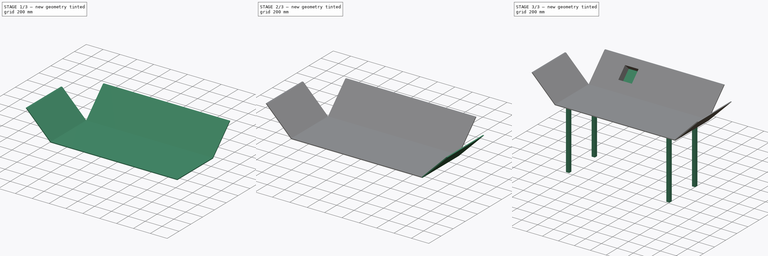
[diagram: build sequence overview — one tinted view per stage of 3, left to right]
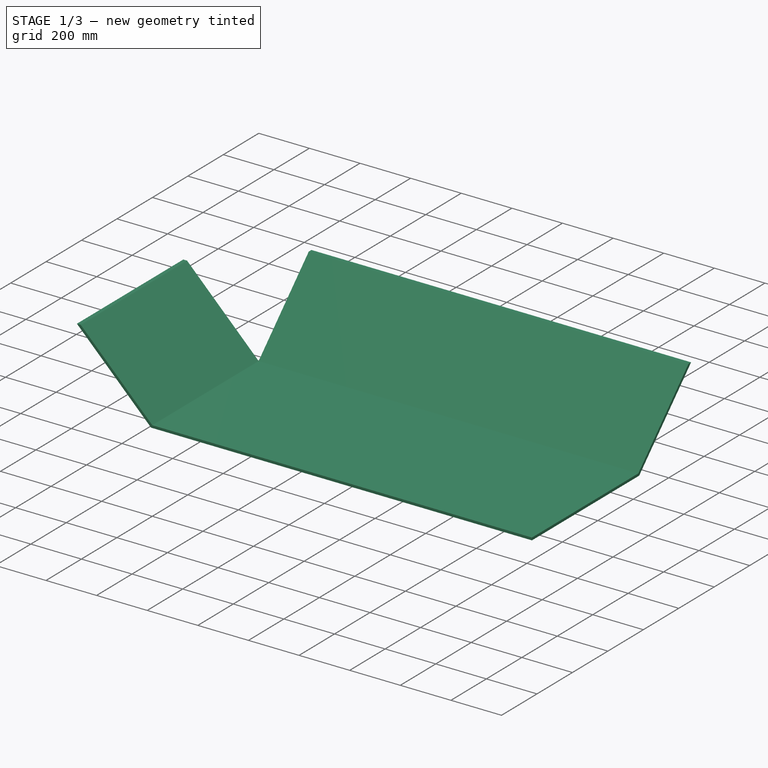
[diagram: stage 1 of 3 — iso view after this stage's code; geometry added in this stage tinted green]
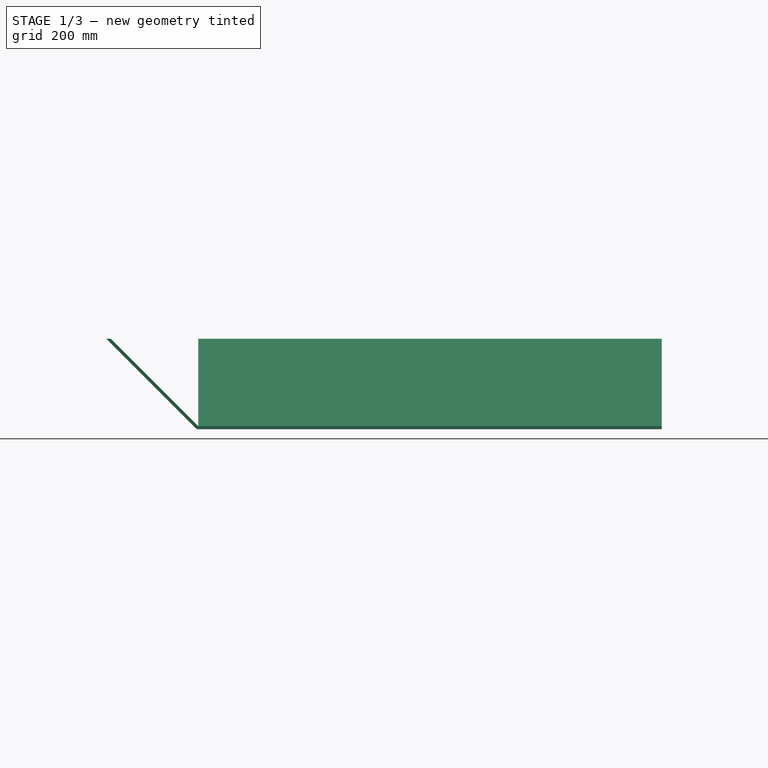
[diagram: stage 1 of 3 — front view after this stage's code; geometry added in this stage tinted green]
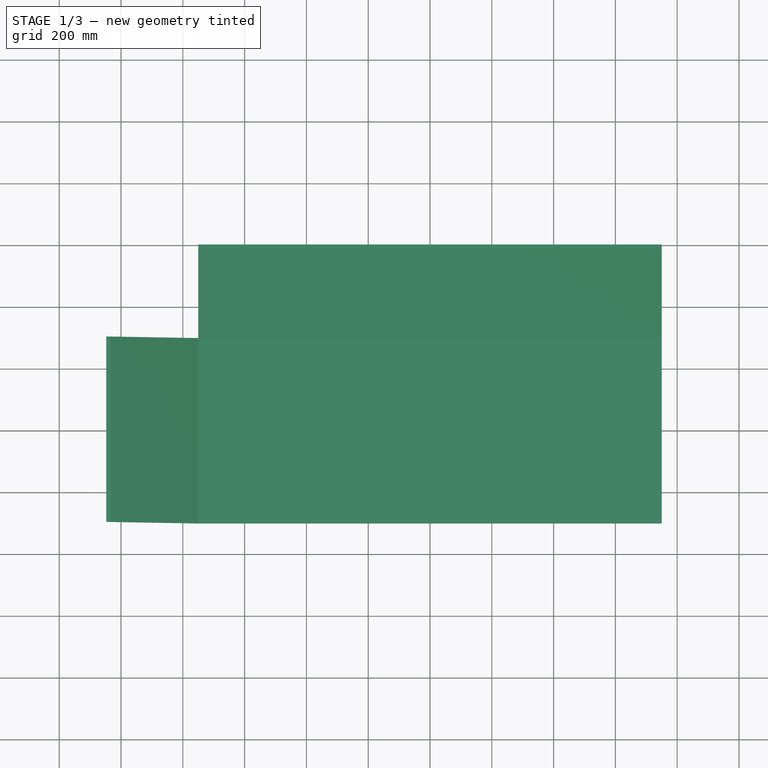
[diagram: stage 1 of 3 — top view after this stage's code; geometry added in this stage tinted green]
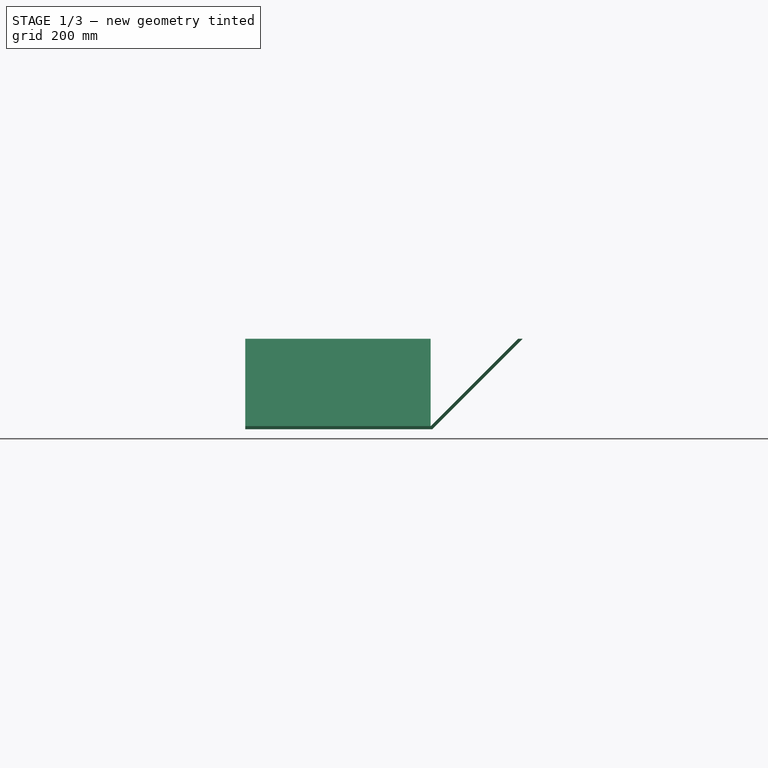
[diagram: stage 1 of 3 — right view after this stage's code; geometry added in this stage tinted green]
FCSTD DOCUMENT  (FreeCAD 0.16R6703 (Git))
Label: setup2
License: All rights reserved
LicenseURL: http://en.wikipedia.org/wiki/All_rights_reserved
objects: Sketcher::SketchObject×9, PartDesign::Pad×5, PartDesign::Mirrored×2, Part::Loft×2, PartDesign::Pocket×1, PartDesign::PolarPattern×1, PartDesign::MultiTransform×1
note: 27 computed .brp shape members not serialized (recipe doc carries the construction recipe); baked Part::Feature solids carry a one-line shape summary decoded from their .brp

FEATURE [Sketcher::SketchObject] Sketch  label="table_top"
  sketch-geometry (4):
    g0: LineSegment StartX=-750 StartY=300 StartZ=0 EndX=750 EndY=300 EndZ=0
    g1: LineSegment StartX=750 StartY=300 StartZ=0 EndX=750 EndY=-300 EndZ=0
    g2: LineSegment StartX=750 StartY=-300 StartZ=0 EndX=-750 EndY=-300 EndZ=0
    g3: LineSegment StartX=-750 StartY=-300 StartZ=0 EndX=-750 EndY=300 EndZ=0
  constraints (11):
    c: Coincident(g0,g1)
    c: Coincident(g1,g2)
    c: Coincident(g2,g3)
    c: Coincident(g3,g0)
    c: Horizontal(g0)
    c: Horizontal(g2)
    c: Vertical(g1)
    c: Vertical(g3)
    c: Symmetric(g0,g2,g-1)
    c: Distance(g0) = 1500
    c: Distance(g1) = 600
FEATURE [PartDesign::Pad] Pad
  Length = 10
  Length2 = 100
  Sketch = -> Sketch
  Type = 0
FEATURE [Sketcher::SketchObject] Sketch001  label="border_back"
  ExternalGeometry = -> [Pad]
  Placement = pos=(-750,0,0) rot=(0.57735,-0.57735,-0.57735;2.0944rad)
  Support = -> Pad [Face4]
  sketch-geometry (5):
    g0: LineSegment StartX=-300 StartY=0 StartZ=0 EndX=-300 EndY=10 EndZ=0
    g1: LineSegment StartX=-300 StartY=10 StartZ=0 EndX=-582.843 EndY=292.843 EndZ=0
    g2: LineSegment StartX=-582.843 StartY=292.843 StartZ=0 EndX=-597.843 EndY=292.843 EndZ=0
    g3: LineSegment StartX=-597.843 StartY=292.843 StartZ=0 EndX=-305 EndY=0 EndZ=0
    g4: LineSegment StartX=-305 StartY=0 StartZ=0 EndX=-300 EndY=0 EndZ=0
  constraints (14):
    c: Coincident(g0,g1)
    c: Coincident(g1,g2)
    c: Horizontal(g2)
    c: Coincident(g2,g3)
    c: Coincident(g0,g4)
    c: Angle(g1,g0) = 2.35619
    c: Parallel(g1,g3)
    c: Vertical(g0)
    c: Horizontal(g4)
    c: Distance(g2) = 15
    c: Distance(g0) = 10
    c: Distance(g1) = 400
    c: Coincident(g3,g4)
    c: Coincident(g0,g-3)
FEATURE [PartDesign::Pad] Pad001  label="back"
  Length = 1500
  Length2 = 100
  Reversed = true
  Sketch = -> Sketch001
  Type = 0
FEATURE [Sketcher::SketchObject] Sketch002  label="border_side"
  ExternalGeometry = -> [Pad001]
  Placement = pos=(0,-300,0) rot=(1,0,0;1.5708rad)
  Support = -> Pad001 [Face1]
  sketch-geometry (5):
    g0: LineSegment StartX=-750 StartY=10 StartZ=0 EndX=-1032.84 EndY=292.843 EndZ=0
    g1: LineSegment StartX=-1032.84 StartY=292.843 StartZ=0 EndX=-1047.84 EndY=292.843 EndZ=0
    g2: LineSegment StartX=-1047.84 StartY=292.843 StartZ=0 EndX=-755 EndY=0 EndZ=0
    g3: LineSegment StartX=-755 StartY=0 StartZ=0 EndX=-750 EndY=0 EndZ=0
    g4: LineSegment StartX=-750 StartY=0 StartZ=0 EndX=-750 EndY=10 EndZ=0
  constraints (14):
    c: Coincident(g0,g1)
    c: Horizontal(g1)
    c: Coincident(g1,g2)
    c: Coincident(g2,g3)
    c: Coincident(g3,g4)
    c: Coincident(g4,g0)
    c: Vertical(g4)
    c: Parallel(g0,g2)
    c: Angle(g0,g4) = 2.35619
    c: Horizontal(g3)
    c: Distance(g0) = 400
    c: Distance(g4) = 10
    c: Distance(g1) = 15
    c: Coincident(g3,g-3)
FEATURE [PartDesign::Pad] Pad002  label="side"
  Length = 600
  Length2 = 100
  Reversed = true
  Sketch = -> Sketch002
  Type = 0
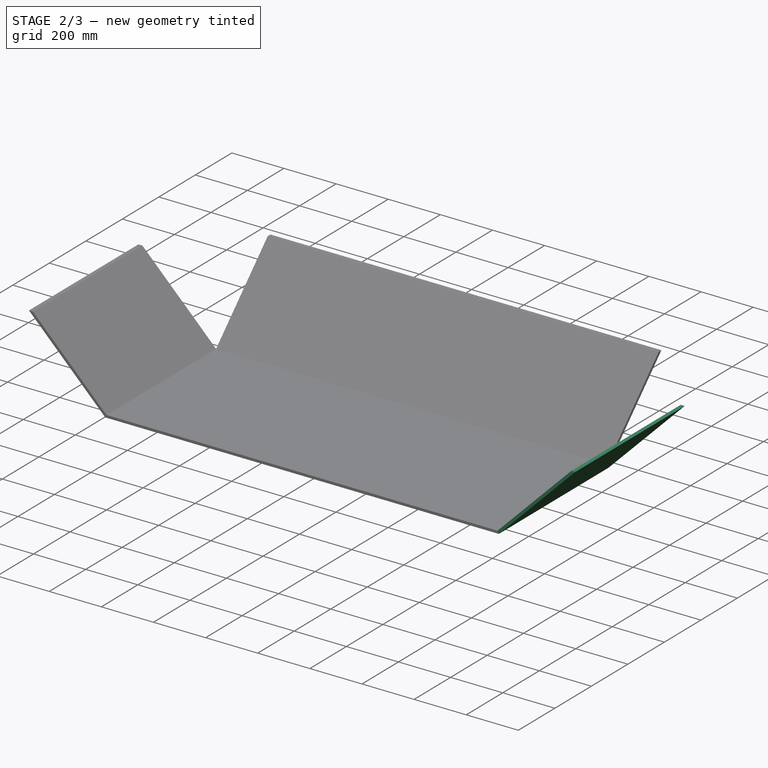
[diagram: stage 2 of 3 — iso view after this stage's code; geometry added in this stage tinted green]
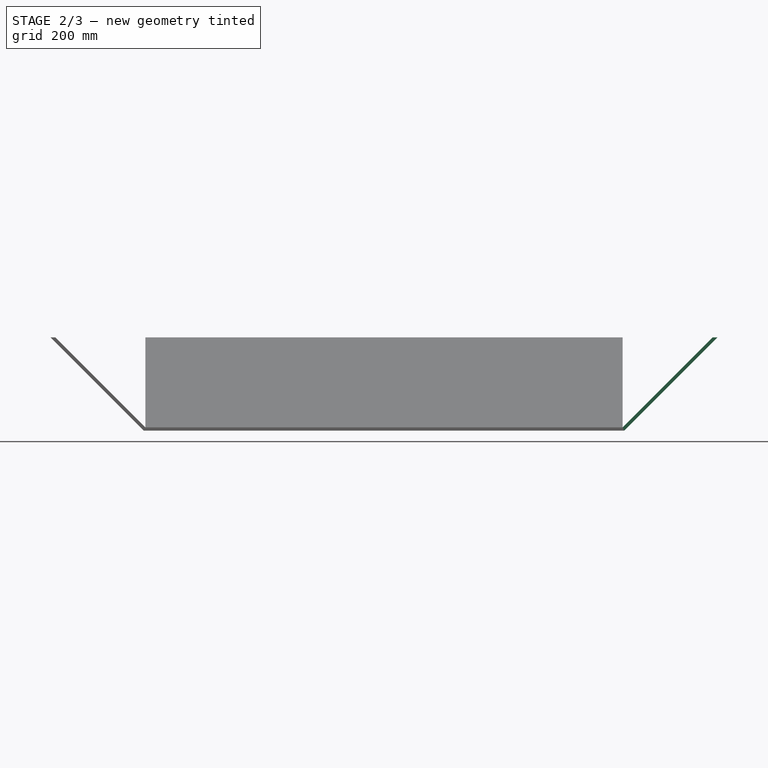
[diagram: stage 2 of 3 — front view after this stage's code; geometry added in this stage tinted green]
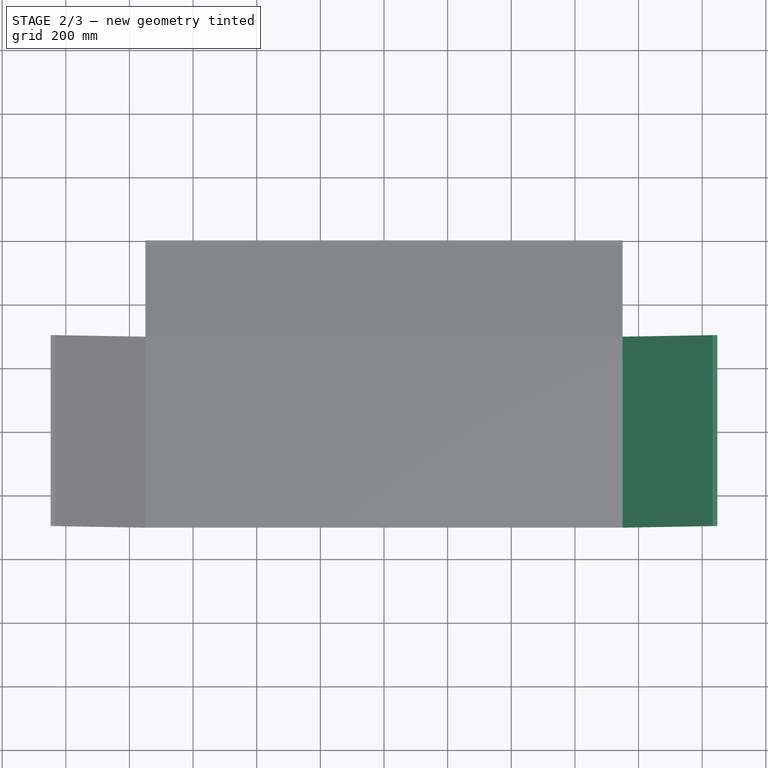
[diagram: stage 2 of 3 — top view after this stage's code; geometry added in this stage tinted green]
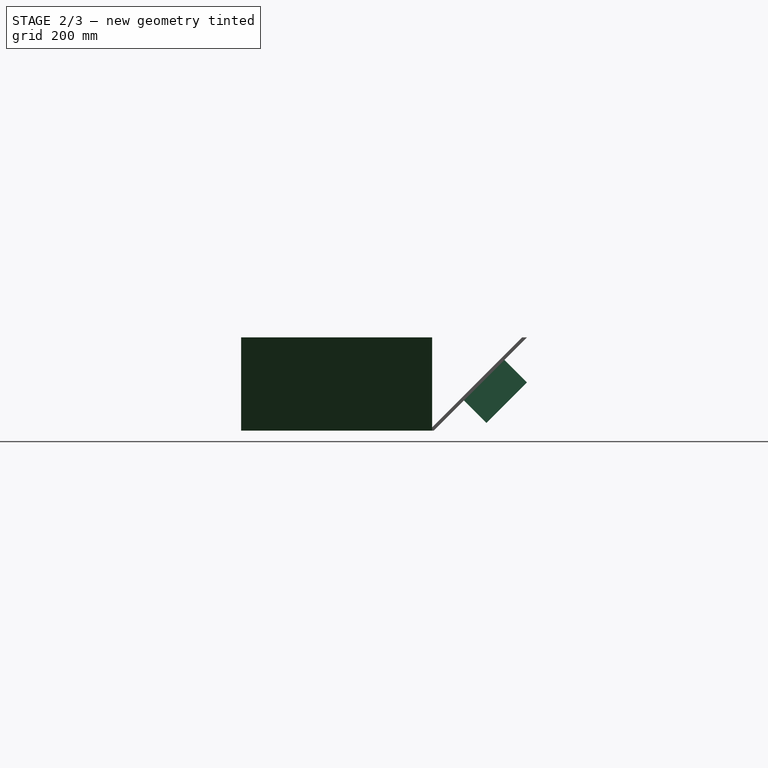
[diagram: stage 2 of 3 — right view after this stage's code; geometry added in this stage tinted green]
FEATURE [PartDesign::Mirrored] Mirrored
  MirrorPlane = -> Sketch002 [V_Axis]
  Originals = -> [Pad002]
FEATURE [Sketcher::SketchObject] Sketch003  label="pocket_out"
  ExternalGeometry = -> [Mirrored]
  Placement = pos=(0,152.5,-152.5) rot=(0,0.92388,0.382683;3.14159rad)
  Support = -> Mirrored [Face15]
  sketch-geometry (4):
    g0: LineSegment StartX=270 StartY=529.81 StartZ=0 EndX=450 EndY=529.81 EndZ=0
    g1: LineSegment StartX=450 StartY=529.81 StartZ=0 EndX=450 EndY=349.81 EndZ=0
    g2: LineSegment StartX=450 StartY=349.81 StartZ=0 EndX=270 EndY=349.81 EndZ=0
    g3: LineSegment StartX=270 StartY=349.81 StartZ=0 EndX=270 EndY=529.81 EndZ=0
  constraints (12):
    c: Coincident(g0,g1)
    c: Coincident(g1,g2)
    c: Coincident(g2,g3)
    c: Coincident(g3,g0)
    c: Horizontal(g0)
    c: Horizontal(g2)
    c: Vertical(g1)
    c: Vertical(g3)
    c: Equal(g1,g0)
    c: Distance(g1) = 180
    c: Distance(g0,g-3) = 100
    c: Distance(g0,g-4) = 300
FEATURE [PartDesign::Pad] Pad003
  Length = 100
  Length2 = 100
  Sketch = -> Sketch003
  Type = 0
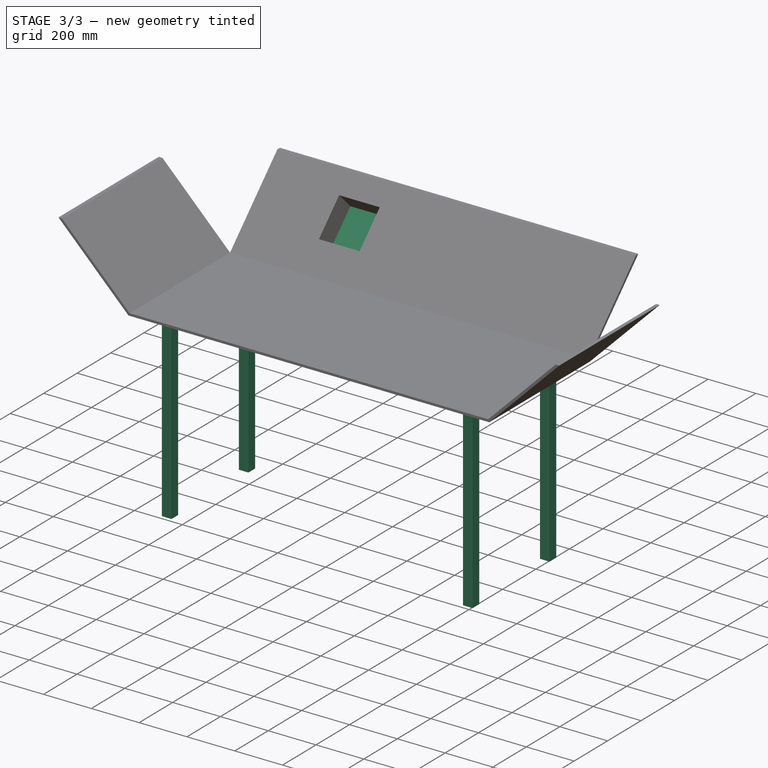
[diagram: stage 3 of 3 — iso view after this stage's code; geometry added in this stage tinted green]
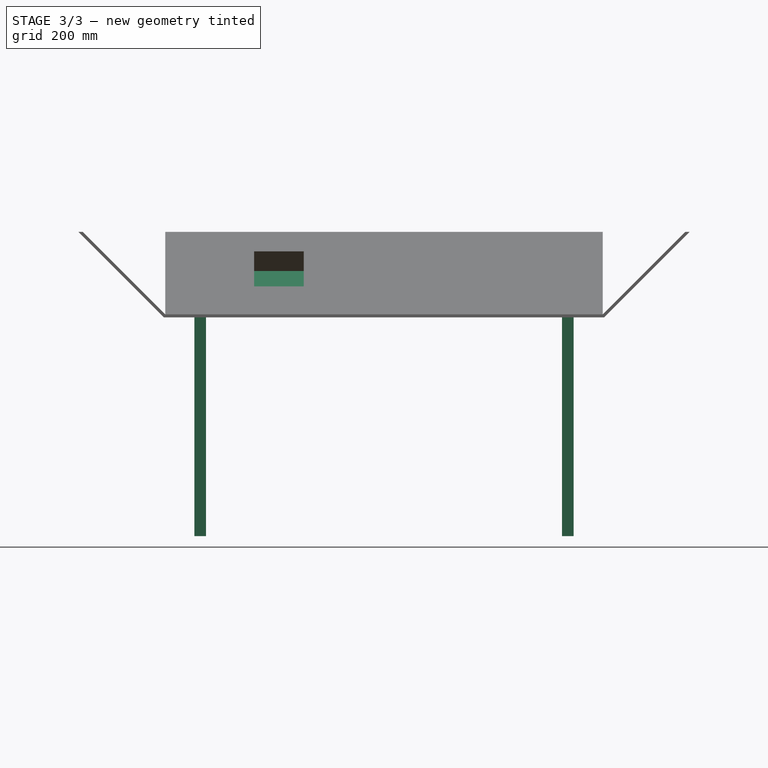
[diagram: stage 3 of 3 — front view after this stage's code; geometry added in this stage tinted green]
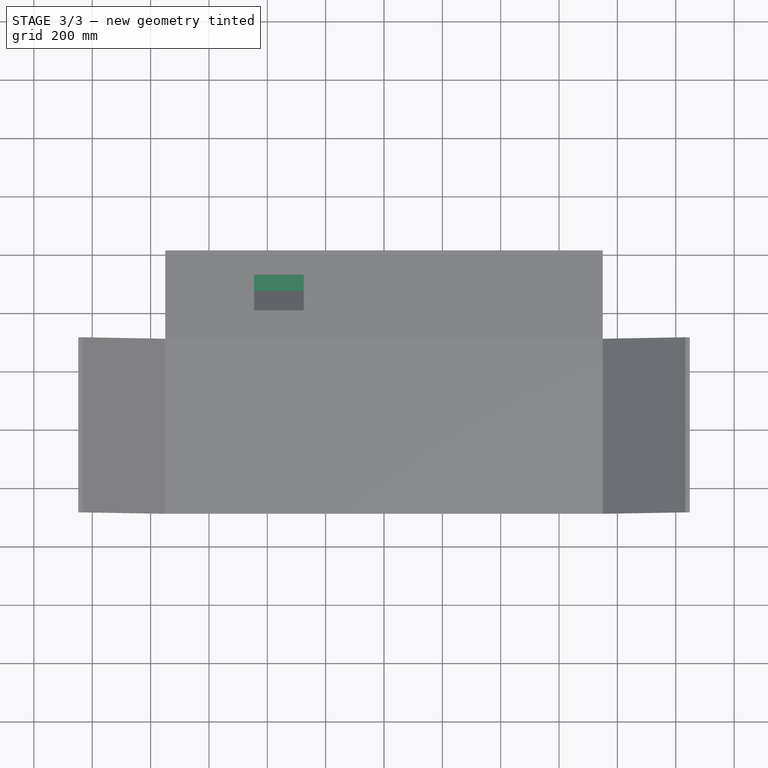
[diagram: stage 3 of 3 — top view after this stage's code; geometry added in this stage tinted green]
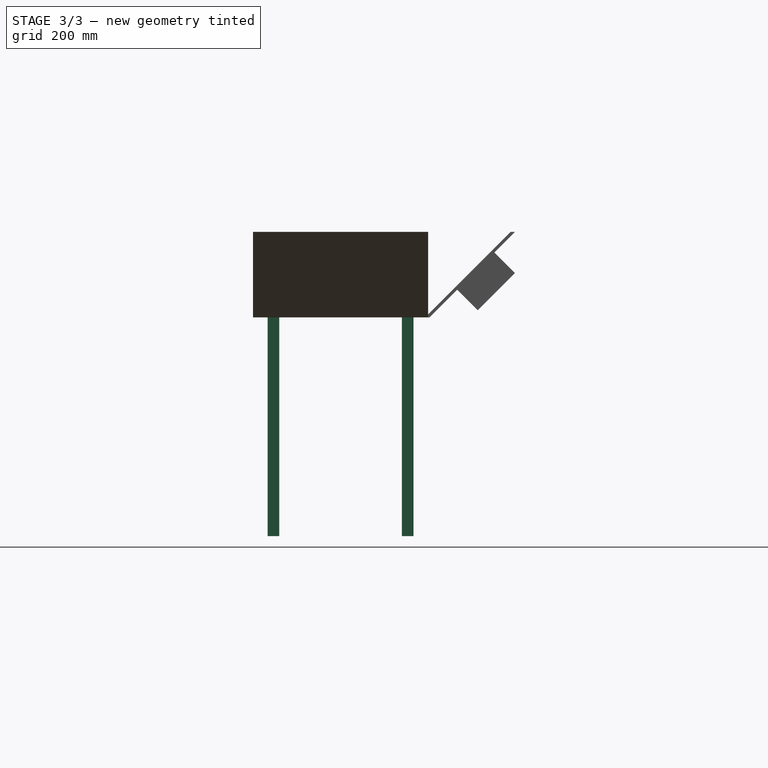
[diagram: stage 3 of 3 — right view after this stage's code; geometry added in this stage tinted green]
FEATURE [Sketcher::SketchObject] Sketch004  label="pocketèin"
  ExternalGeometry = -> [Pad003]
  Placement = pos=(0,145,-145) rot=(1,0,0;0.785398rad)
  Support = -> Pad003 [Face14]
  sketch-geometry (4):
    g0: LineSegment StartX=-445 StartY=524.81 StartZ=0 EndX=-275 EndY=524.81 EndZ=0
    g1: LineSegment StartX=-275 StartY=524.81 StartZ=0 EndX=-275 EndY=354.81 EndZ=0
    g2: LineSegment StartX=-275 StartY=354.81 StartZ=0 EndX=-445 EndY=354.81 EndZ=0
    g3: LineSegment StartX=-445 StartY=354.81 StartZ=0 EndX=-445 EndY=524.81 EndZ=0
  constraints (12):
    c: Coincident(g0,g1)
    c: Coincident(g1,g2)
    c: Coincident(g2,g3)
    c: Coincident(g3,g0)
    c: Horizontal(g0)
    c: Horizontal(g2)
    c: Vertical(g1)
    c: Vertical(g3)
    c: DistanceY(g0,g-4) = 5
    c: DistanceX(g0,g-4) = 5
    c: DistanceY(g-5,g2) = 5
    c: DistanceX(g-4,g0) = 5
FEATURE [PartDesign::Pocket] Pocket
  Length = 95
  Sketch = -> Sketch004
  Type = 0
FEATURE [Sketcher::SketchObject] Sketch005  label="leg"
  ExternalGeometry = -> [Pocket]
  Placement = pos=(0,0,0) rot=(1,0,0;3.14159rad)
  Support = -> Pocket [Face5]
  sketch-geometry (4):
    g0: LineSegment StartX=610 StartY=-210 StartZ=0 EndX=650 EndY=-210 EndZ=0
    g1: LineSegment StartX=650 StartY=-210 StartZ=0 EndX=650 EndY=-250 EndZ=0
    g2: LineSegment StartX=650 StartY=-250 StartZ=0 EndX=610 EndY=-250 EndZ=0
    g3: LineSegment StartX=610 StartY=-250 StartZ=0 EndX=610 EndY=-210 EndZ=0
  constraints (12):
    c: Coincident(g0,g1)
    c: Coincident(g1,g2)
    c: Coincident(g2,g3)
    c: Coincident(g3,g0)
    c: Horizontal(g0)
    c: Horizontal(g2)
    c: Vertical(g1)
    c: Vertical(g3)
    c: Equal(g1,g0)
    c: Distance(g0) = 40
    c: Distance(g0,g-3) = 100
    c: Distance(g1,g-4) = 50
FEATURE [PartDesign::Pad] Pad004
  Length = 750
  Length2 = 100
  Sketch = -> Sketch005
  Type = 0
FEATURE [PartDesign::PolarPattern] PolarPattern
  Angle = 360
  Axis = -> Sketch005 [N_Axis]
  Occurrences = 2
FEATURE [PartDesign::Mirrored] Mirrored001
  MirrorPlane = -> Sketch005 [V_Axis]
FEATURE [PartDesign::MultiTransform] MultiTransform
  Originals = -> [Pad004]
  Transformations = -> [PolarPattern,Mirrored001]
FEATURE [Sketcher::SketchObject] Sketch006
  ExternalGeometry = -> [MultiTransform]
  Placement = pos=(0,300,0) rot=(0,0.707107,0.707107;3.14159rad)
  Support = -> MultiTransform [Face4]
  sketch-geometry (5):
    g0: LineSegment StartX=750 StartY=0 StartZ=0 EndX=755 EndY=0 EndZ=0
    g1: LineSegment StartX=755 StartY=0 StartZ=0 EndX=1047.84 EndY=292.843 EndZ=0
    g2: LineSegment StartX=1047.84 StartY=292.843 StartZ=0 EndX=1032.84 EndY=292.843 EndZ=0
    g3: LineSegment StartX=1032.84 StartY=292.843 StartZ=0 EndX=750 EndY=10 EndZ=0
    g4: LineSegment StartX=750 StartY=10 StartZ=0 EndX=750 EndY=0 EndZ=0
  constraints (10):
    c: Coincident(g-6,g0)
    c: Coincident(g0,g-6)
    c: Coincident(g0,g1)
    c: Coincident(g1,g-5)
    c: Coincident(g1,g2)
    c: Coincident(g2,g-4)
    c: Coincident(g2,g3)
    c: Coincident(g3,g-3)
    c: Coincident(g3,g4)
    c: Coincident(g4,g0)
FEATURE [Part::Loft] Loft
  Closed = false
  Ruled = true
  Sections = -> [Sketch006,Sketch001]
  Solid = false
FEATURE [Sketcher::SketchObject] Sketch007
  ExternalGeometry = -> [MultiTransform]
  Placement = pos=(750,0,0) rot=(0.57735,0.57735,0.57735;2.0944rad)
  Support = -> MultiTransform [Face33]
  sketch-geometry (5):
    g0: LineSegment StartX=300 StartY=0 StartZ=0 EndX=305 EndY=0 EndZ=0
    g1: LineSegment StartX=305 StartY=0 StartZ=0 EndX=597.843 EndY=292.843 EndZ=0
    g2: LineSegment StartX=597.843 StartY=292.843 StartZ=0 EndX=582.843 EndY=292.843 EndZ=0
    g3: LineSegment StartX=582.843 StartY=292.843 StartZ=0 EndX=300 EndY=10 EndZ=0
    g4: LineSegment StartX=300 StartY=10 StartZ=0 EndX=300 EndY=0 EndZ=0
  constraints (10):
    c: Coincident(g-6,g0)
    c: Coincident(g0,g-6)
    c: Coincident(g0,g1)
    c: Coincident(g1,g-5)
    c: Coincident(g1,g2)
    c: Coincident(g2,g-5)
    c: Coincident(g2,g3)
    c: Coincident(g3,g-3)
    c: Coincident(g3,g4)
    c: Coincident(g4,g0)
FEATURE [Sketcher::SketchObject] Sketch008
  ExternalGeometry = -> [MultiTransform]
  Placement = pos=(0,300,0) rot=(0,0.707107,0.707107;3.14159rad)
  Support = -> MultiTransform [Face35]
  sketch-geometry (5):
    g0: LineSegment StartX=-750 StartY=0 StartZ=0 EndX=-755 EndY=0 EndZ=0
    g1: LineSegment StartX=-755 StartY=0 StartZ=0 EndX=-1047.84 EndY=292.843 EndZ=0
    g2: LineSegment StartX=-1047.84 StartY=292.843 StartZ=0 EndX=-1032.84 EndY=292.843 EndZ=0
    g3: LineSegment StartX=-1032.84 StartY=292.843 StartZ=0 EndX=-750 EndY=10 EndZ=0
    g4: LineSegment StartX=-750 StartY=10 StartZ=0 EndX=-750 EndY=0 EndZ=0
  constraints (10):
    c: Coincident(g-6,g0)
    c: Coincident(g0,g-6)
    c: Coincident(g0,g1)
    c: Coincident(g1,g-5)
    c: Coincident(g1,g2)
    c: Coincident(g2,g-5)
    c: Coincident(g2,g3)
    c: Coincident(g3,g-4)
    c: Coincident(g3,g4)
    c: Coincident(g4,g0)
FEATURE [Part::Loft] Loft001
  Closed = false
  Ruled = true
  Sections = -> [Sketch007,Sketch008]
  Solid = false
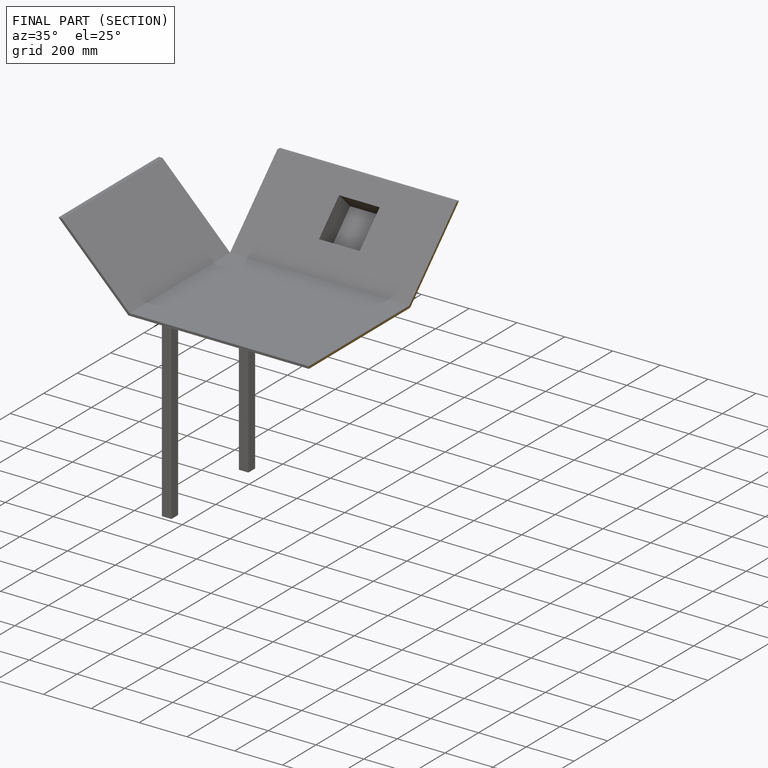
[diagram: finished part — half-section view (interior)]
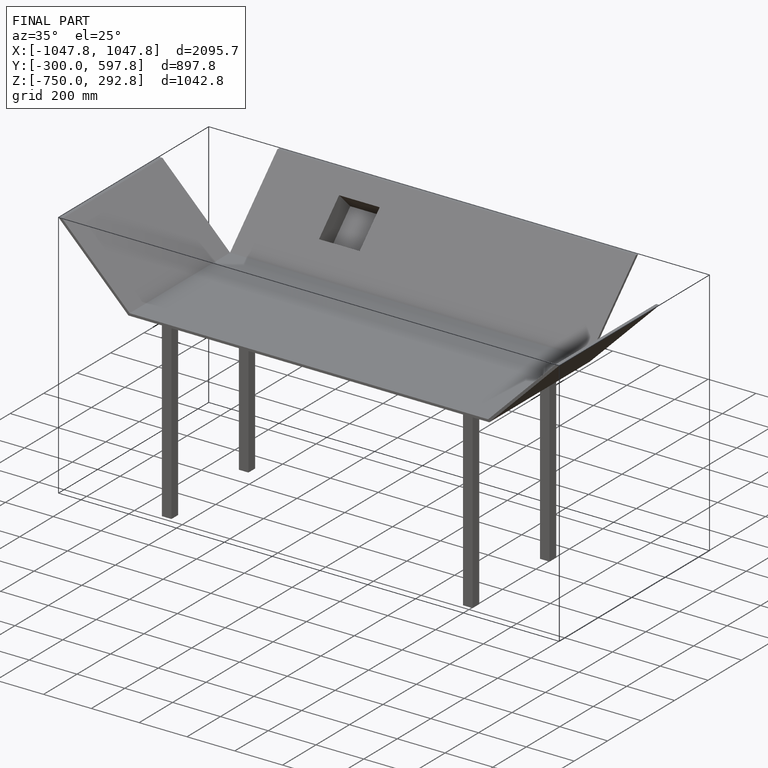
[diagram: finished part — iso view with bounding-box wireframe]
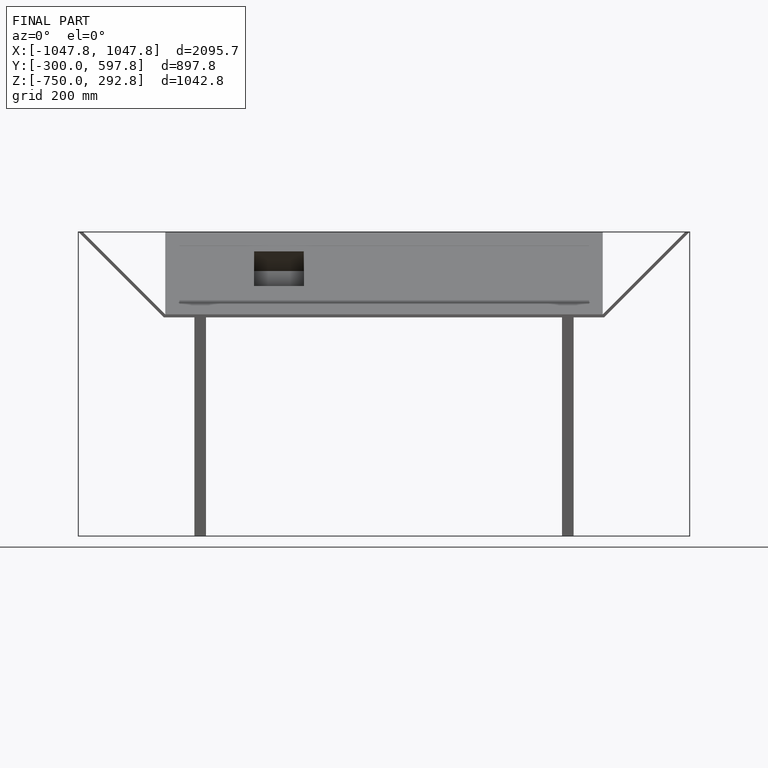
[diagram: finished part — front view with bounding-box wireframe]
